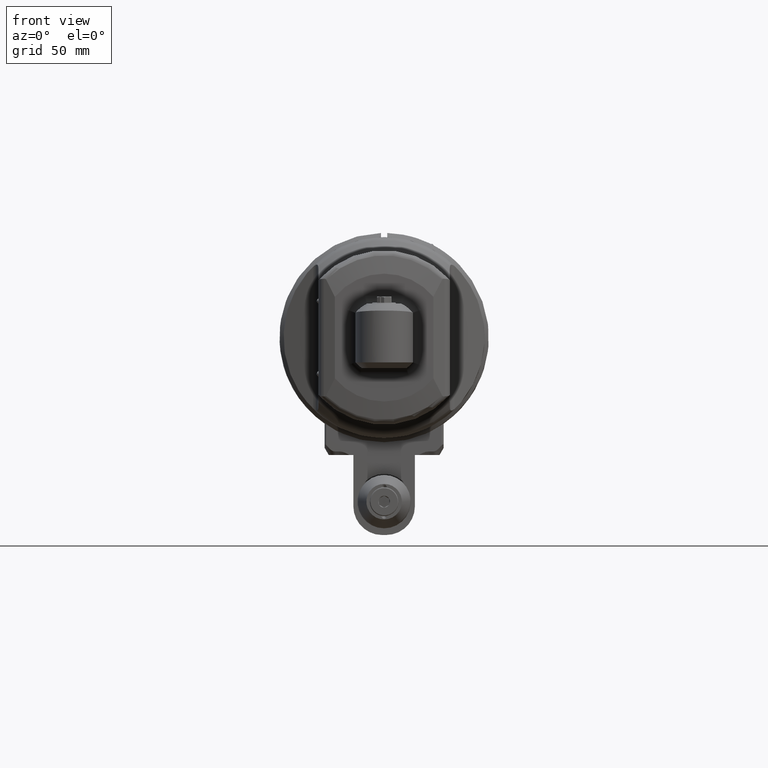
[diagram: clean part render]
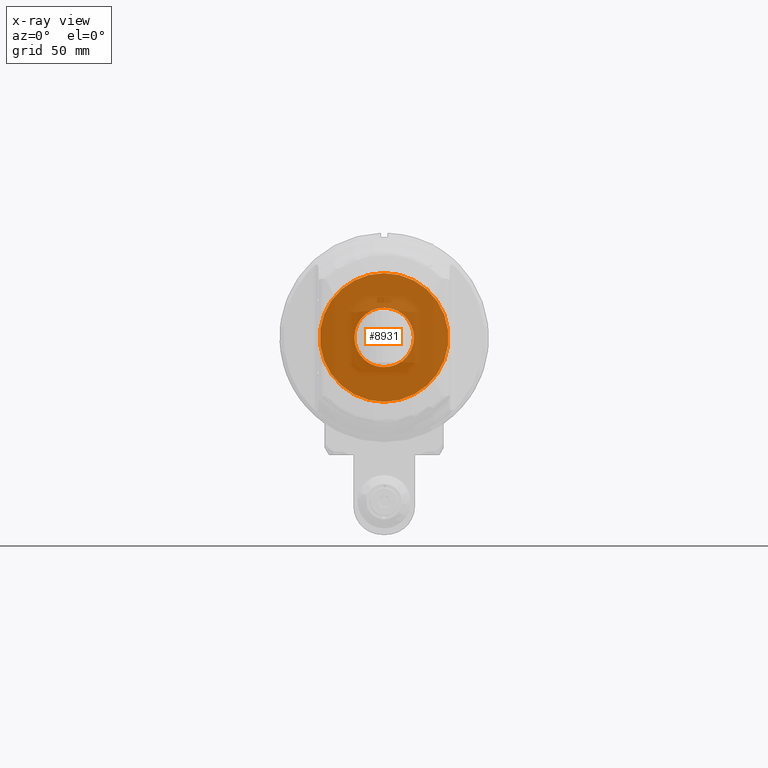
[diagram: x-ray — body ghosted, one internal face saturated and labeled with its STEP entity id]
A machine part, front view, then the same camera in x-ray: the body is ghosted and one INTERNAL B-rep face — a face not visible from any outside direction — is saturated and labeled: STEP entity #8931.
In plain terms, the highlighted planar face has unit normal (0, 1, 0).
Its self-contained STEP definition (entity closure, byte-faithful):
#127=FACE_BOUND('',#1274,.T.);
#339=PLANE('',#9641);
#724=FACE_OUTER_BOUND('',#1273,.T.);
#1273=EDGE_LOOP('',(#6308));
#1274=EDGE_LOOP('',(#6309,#6310));
#1848=CIRCLE('',#9642,31.35);
#2244=B_SPLINE_CURVE_WITH_KNOTS('',3,(#13745,#13746,#13747,#13748,#13749,
#13750,#13751,#13752,#13753,#13754,#13755,#13756,#13757,#13758,#13759,#13760,
#13761,#13762,#13763,#13764),.UNSPECIFIED.,.F.,.F.,(4,1,1,1,1,1,1,1,1,1,
1,1,1,1,1,1,1,4),(0.,0.05882352941176,0.1176470588235,0.1764705882353,0.2352941176471,
0.2941176470588,0.3529411764706,0.4117647058824,0.4705882352941,0.5294117647059,
0.5882352941176,0.6470588235294,0.7058823529412,0.7647058823529,0.8235294117647,
0.8823529411765,0.9411764705882,1.),.UNSPECIFIED.);
#2245=B_SPLINE_CURVE_WITH_KNOTS('',3,(#13765,#13766,#13767,#13768,#13769,
#13770,#13771,#13772,#13773,#13774,#13775,#13776,#13777,#13778,#13779,#13780,
#13781,#13782,#13783,#13784),.UNSPECIFIED.,.F.,.F.,(4,1,1,1,1,1,1,1,1,1,
1,1,1,1,1,1,1,4),(0.,0.05882352941176,0.1176470588235,0.1764705882353,0.2352941176471,
0.2941176470588,0.3529411764706,0.4117647058824,0.4705882352941,0.5294117647059,
0.5882352941176,0.6470588235294,0.7058823529412,0.7647058823529,0.8235294117647,
0.8823529411765,0.9411764705882,1.),.UNSPECIFIED.);
#3802=VERTEX_POINT('',#13741);
#3803=VERTEX_POINT('',#13743);
#3804=VERTEX_POINT('',#13744);
#4762=EDGE_CURVE('',#3802,#3802,#1848,.T.);
#4763=EDGE_CURVE('',#3803,#3804,#2244,.T.);
#4764=EDGE_CURVE('',#3804,#3803,#2245,.T.);
#6308=ORIENTED_EDGE('',*,*,#4762,.T.);
#6309=ORIENTED_EDGE('',*,*,#4763,.T.);
#6310=ORIENTED_EDGE('',*,*,#4764,.T.);
#8931=ADVANCED_FACE('',(#724,#127),#339,.F.);
#9641=AXIS2_PLACEMENT_3D('',#13740,#10819,#10820);
#9642=AXIS2_PLACEMENT_3D('',#13742,#10821,#10822);
#10819=DIRECTION('center_axis',(0.,0.,1.));
#10820=DIRECTION('ref_axis',(1.,0.,0.));
#10821=DIRECTION('center_axis',(0.,0.,-1.));
#10822=DIRECTION('ref_axis',(-1.,0.,0.));
#13740=CARTESIAN_POINT('Origin',(0.,0.,-0.005));
#13741=CARTESIAN_POINT('',(-31.35,-1.347527155718E-14,-0.005000000000013));
#13742=CARTESIAN_POINT('Origin',(0.,-1.347111479062E-14,-0.005000000000013));
#13743=CARTESIAN_POINT('',(0.,14.5,-0.005));
#13744=CARTESIAN_POINT('',(0.,-14.5,-0.005));
#13745=CARTESIAN_POINT('Ctrl Pts',(0.,14.5,-0.005));
#13746=CARTESIAN_POINT('Ctrl Pts',(-0.9016584831045,14.49888450858,-0.005));
#13747=CARTESIAN_POINT('Ctrl Pts',(-2.671468599625,14.33554001612,-0.005));
#13748=CARTESIAN_POINT('Ctrl Pts',(-5.268829729588,13.59869267255,-0.005));
#13749=CARTESIAN_POINT('Ctrl Pts',(-7.679337301994,12.39548495214,-0.005));
#13750=CARTESIAN_POINT('Ctrl Pts',(-9.806914598114,10.79223327368,-0.005));
#13751=CARTESIAN_POINT('Ctrl Pts',(-11.63683328154,8.790915729378,-0.005));
#13752=CARTESIAN_POINT('Ctrl Pts',(-13.0569736024,6.494715758095,-0.005));
#13753=CARTESIAN_POINT('Ctrl Pts',(-14.02996751605,3.978086094757,-0.005));
#13754=CARTESIAN_POINT('Ctrl Pts',(-14.52162747338,1.332022544295,-0.005));
#13755=CARTESIAN_POINT('Ctrl Pts',(-14.5192889571,-1.355010221333,-0.005));
#13756=CARTESIAN_POINT('Ctrl Pts',(-14.02494121093,-3.993292120235,-0.005));
#13757=CARTESIAN_POINT('Ctrl Pts',(-13.05524697636,-6.495965555902,-0.005));
#13758=CARTESIAN_POINT('Ctrl Pts',(-11.64458652108,-8.779112300569,-0.005));
#13759=CARTESIAN_POINT('Ctrl Pts',(-9.825801018785,-10.77438007515,-0.005));
#13760=CARTESIAN_POINT('Ctrl Pts',(-7.704440983411,-12.3799103196,-0.005));
#13761=CARTESIAN_POINT('Ctrl Pts',(-5.293415155813,-13.58956697316,-0.005));
#13762=CARTESIAN_POINT('Ctrl Pts',(-2.687238459729,-14.33354425829,-0.005));
#13763=CARTESIAN_POINT('Ctrl Pts',(-0.9076552997688,-14.49853883461,-0.005));
#13764=CARTESIAN_POINT('Ctrl Pts',(0.,-14.5,-0.005));
#13765=CARTESIAN_POINT('Ctrl Pts',(0.,-14.5,-0.005));
#13766=CARTESIAN_POINT('Ctrl Pts',(0.9016584831045,-14.49888450858,-0.005));
#13767=CARTESIAN_POINT('Ctrl Pts',(2.671468599625,-14.33554001612,-0.005));
#13768=CARTESIAN_POINT('Ctrl Pts',(5.268829729588,-13.59869267255,-0.005));
#13769=CARTESIAN_POINT('Ctrl Pts',(7.679337301994,-12.39548495214,-0.005));
#13770=CARTESIAN_POINT('Ctrl Pts',(9.806914598114,-10.79223327368,-0.005));
#13771=CARTESIAN_POINT('Ctrl Pts',(11.63683328154,-8.790915729378,-0.005));
#13772=CARTESIAN_POINT('Ctrl Pts',(13.0569736024,-6.494715758095,-0.005));
#13773=CARTESIAN_POINT('Ctrl Pts',(14.02996751605,-3.978086094757,-0.005));
#13774=CARTESIAN_POINT('Ctrl Pts',(14.52162747338,-1.332022544295,-0.005));
#13775=CARTESIAN_POINT('Ctrl Pts',(14.5192889571,1.355010221333,-0.005));
#13776=CARTESIAN_POINT('Ctrl Pts',(14.02494121093,3.993292120235,-0.005));
#13777=CARTESIAN_POINT('Ctrl Pts',(13.05524697636,6.495965555902,-0.005));
#13778=CARTESIAN_POINT('Ctrl Pts',(11.64458652108,8.779112300569,-0.005));
#13779=CARTESIAN_POINT('Ctrl Pts',(9.825801018785,10.77438007515,-0.005));
#13780=CARTESIAN_POINT('Ctrl Pts',(7.704440983411,12.3799103196,-0.005));
#13781=CARTESIAN_POINT('Ctrl Pts',(5.293415155813,13.58956697316,-0.005));
#13782=CARTESIAN_POINT('Ctrl Pts',(2.687238459729,14.33354425829,-0.005));
#13783=CARTESIAN_POINT('Ctrl Pts',(0.9076552997688,14.49853883461,-0.005));
#13784=CARTESIAN_POINT('Ctrl Pts',(0.,14.5,-0.005));